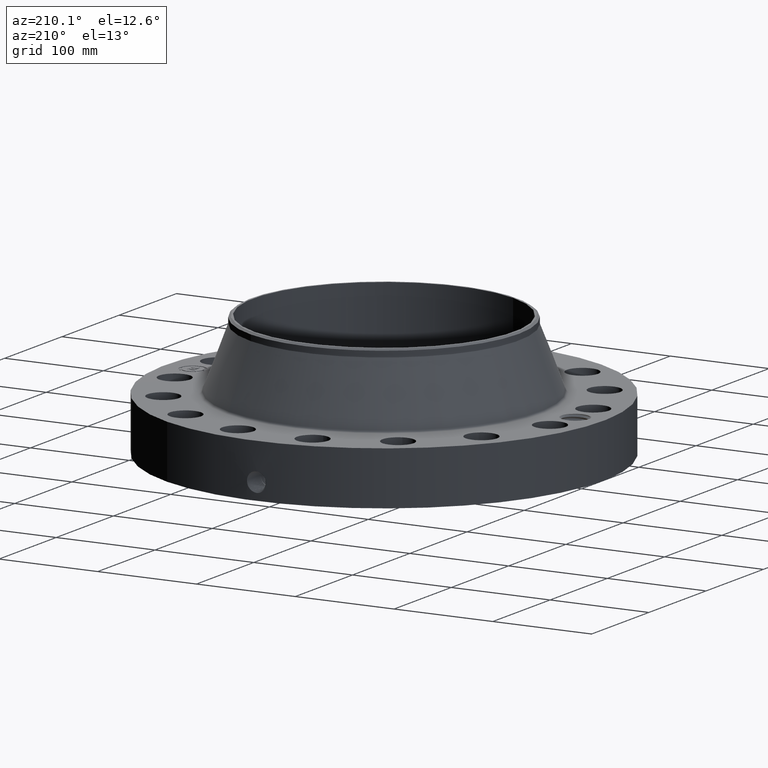
[diagram: clean part render]
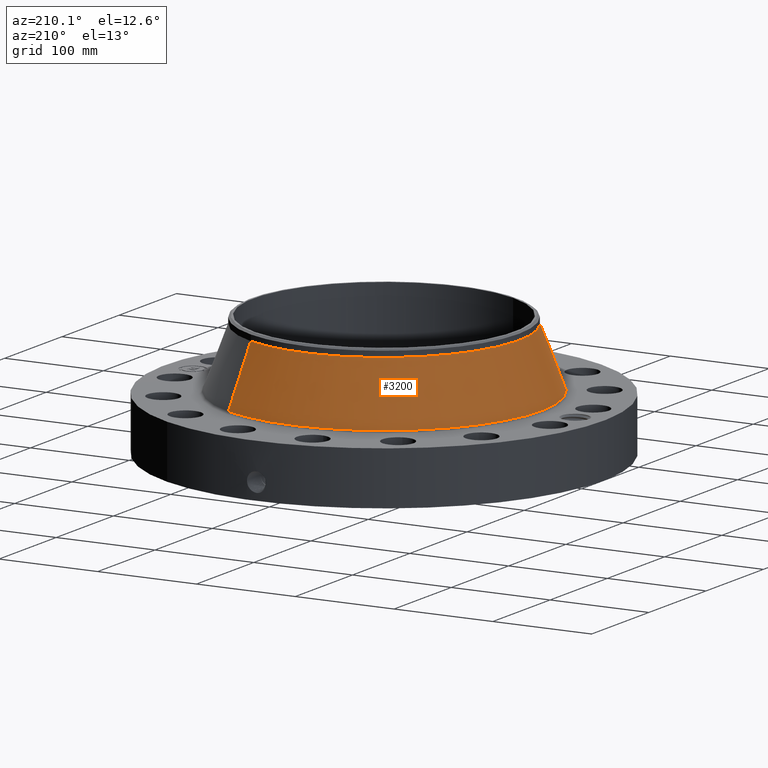
[diagram: same view with one face highlighted and labeled with its STEP entity id]
A machine part, auxiliary view. The second image highlights one B-rep face of the part: STEP entity #3200.
In plain terms, the highlighted conical surface has half-angle 20.83 deg.
Its self-contained STEP definition (entity closure, byte-faithful):
#2434=AXIS2_PLACEMENT_3D('Circle Axis2P3D',#2432,#2433,$) ;
#3161=AXIS2_PLACEMENT_3D('Cone Axis2P3D',#3158,#3159,#3160) ;
#3191=AXIS2_PLACEMENT_3D('Circle Axis2P3D',#3189,#3190,$) ;
#2410=CARTESIAN_POINT('Vertex',(3.01107031894,5.51172724804,2.44732937592)) ;
#2417=CARTESIAN_POINT('Vertex',(-3.01107031894,-5.51172724804,2.44732937592)) ;
#2432=CARTESIAN_POINT('Axis2P3D Location',(0.,0.,2.44732937592)) ;
#3158=CARTESIAN_POINT('Axis2P3D Location',(0.,0.,4.82759002243)) ;
#3163=CARTESIAN_POINT('Line Origine',(2.79399129447,5.11436675911,3.63745969918)) ;
#3167=CARTESIAN_POINT('Vertex',(2.57691227001,4.71700627018,4.82759002243)) ;
#3174=CARTESIAN_POINT('Vertex',(-2.57691227001,-4.71700627018,4.82759002243)) ;
#3177=CARTESIAN_POINT('Line Origine',(-2.79399129447,-5.11436675911,3.63745969918)) ;
#3189=CARTESIAN_POINT('Axis2P3D Location',(0.,0.,4.82759002243)) ;
#2433=DIRECTION('Axis2P3D Direction',(0.,0.,-0.0393700787402)) ;
#3159=DIRECTION('Axis2P3D Direction',(0.,0.,-0.0393700787402)) ;
#3160=DIRECTION('Axis2P3D XDirection',(-0.0188750212049,-0.0345504945626,0.)) ;
#3164=DIRECTION('Vector Direction',(0.00671174112036,0.0122857597121,-0.0367969528553)) ;
#3178=DIRECTION('Vector Direction',(-0.00671174112036,-0.0122857597121,-0.0367969528553)) ;
#3190=DIRECTION('Axis2P3D Direction',(0.,0.,-0.0393700787402)) ;
#3165=VECTOR('Line Direction',#3164,0.0393700787402) ;
#3179=VECTOR('Line Direction',#3178,0.0393700787402) ;
#3195=ORIENTED_EDGE('',*,*,#2436,.F.) ;
#3196=ORIENTED_EDGE('',*,*,#3181,.T.) ;
#3197=ORIENTED_EDGE('',*,*,#3193,.T.) ;
#3198=ORIENTED_EDGE('',*,*,#3169,.F.) ;
#3200=ADVANCED_FACE('PartBody',(#3199),#3162,.T.) ;
#2435=CIRCLE('generated circle',#2434,6.28057972821) ;
#3192=CIRCLE('generated circle',#3191,5.37500000002) ;
#3162=CONICAL_SURFACE('Cone',#3161,5.37500000002,0.363543680777) ;
#2436=EDGE_CURVE('',#2418,#2411,#2435,.T.) ;
#3169=EDGE_CURVE('',#2411,#3168,#3166,.F.) ;
#3181=EDGE_CURVE('',#2418,#3175,#3180,.F.) ;
#3193=EDGE_CURVE('',#3175,#3168,#3192,.T.) ;
#3194=EDGE_LOOP('',(#3195,#3196,#3197,#3198)) ;
#3199=FACE_OUTER_BOUND('',#3194,.T.) ;
#3166=LINE('Line',#3163,#3165) ;
#3180=LINE('Line',#3177,#3179) ;
#2411=VERTEX_POINT('',#2410) ;
#2418=VERTEX_POINT('',#2417) ;
#3168=VERTEX_POINT('',#3167) ;
#3175=VERTEX_POINT('',#3174) ;